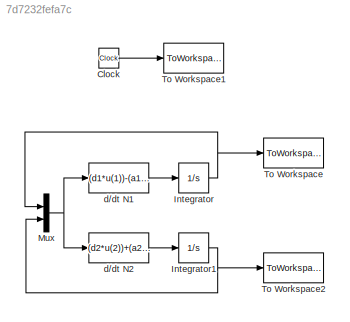
MODEL slx_7d7232fefa7c
KIND model
CONFIG AbsTol = auto
CONFIG EnableMultiTasking = off
CONFIG FixedStep = auto
CONFIG MaxStep = auto
CONFIG MinStep = auto
CONFIG RelTol = 1e-6
CONFIG SampleTimeConstraint = Unconstrained
CONFIG Solver = ode45
CONFIG SolverName = ode45
CONFIG StartTime = 0.0
CONFIG StopTime = ttotal
BLOCK [Clock] Clock
BLOCK [Integrator] Integrator
  InitialCondition = N1
  Ports = [1, 1]
BLOCK [Integrator] Integrator1
  InitialCondition = N2
  Ports = [1, 1]
BLOCK [Mux] Mux
  DisplayOption = bar
  Inputs = 2
  Ports = [2, 1]
BLOCK [ToWorkspace] To Workspace
  FixptAsFi = on
  MaxDataPoints = inf
  Ports = [1]
  SampleTime = -1
  Save2DSignal = 3-D array (concatenate along third dimension)
  VariableName = N1out
BLOCK [ToWorkspace] To Workspace1
  FixptAsFi = on
  MaxDataPoints = inf
  Ports = [1]
  SampleTime = -1
  Save2DSignal = 3-D array (concatenate along third dimension)
  SaveFormat = Timeseries
  VariableName = t
BLOCK [ToWorkspace] To Workspace2
  FixptAsFi = on
  MaxDataPoints = inf
  Ports = [1]
  SampleTime = -1
  Save2DSignal = 3-D array (concatenate along third dimension)
  VariableName = N2out
BLOCK [Fcn] d//dt N1
  Expr = (d1*u(1))-(a1*u(1)*u(2))
BLOCK [Fcn] d//dt N2
  Expr = (d2*u(2))+(a2*u(1)*u(2))
LINE Clock:1 -> To Workspace1:1
NET Integrator1:1 -> Mux:2, To Workspace2:1
NET Integrator:1 -> Mux:1, To Workspace:1
NET Mux:1 -> d//dt N1:1, d//dt N2:1
LINE d//dt N1:1 -> Integrator:1
LINE d//dt N2:1 -> Integrator1:1
note: NET lines group one-source signal fan-out (src -> all destinations, sorted); 1:1 wires keep LINE
